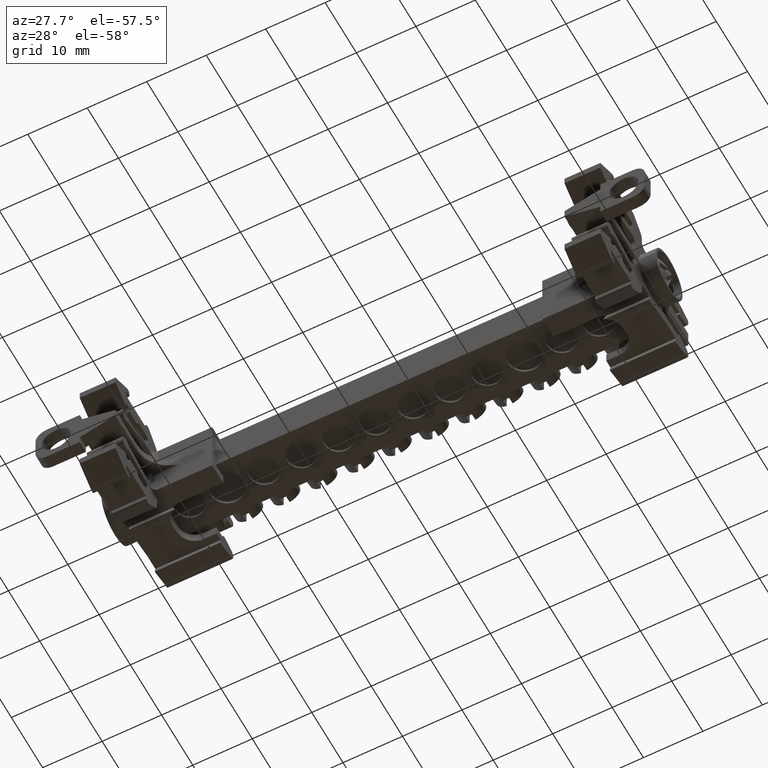
[diagram: clean part render]
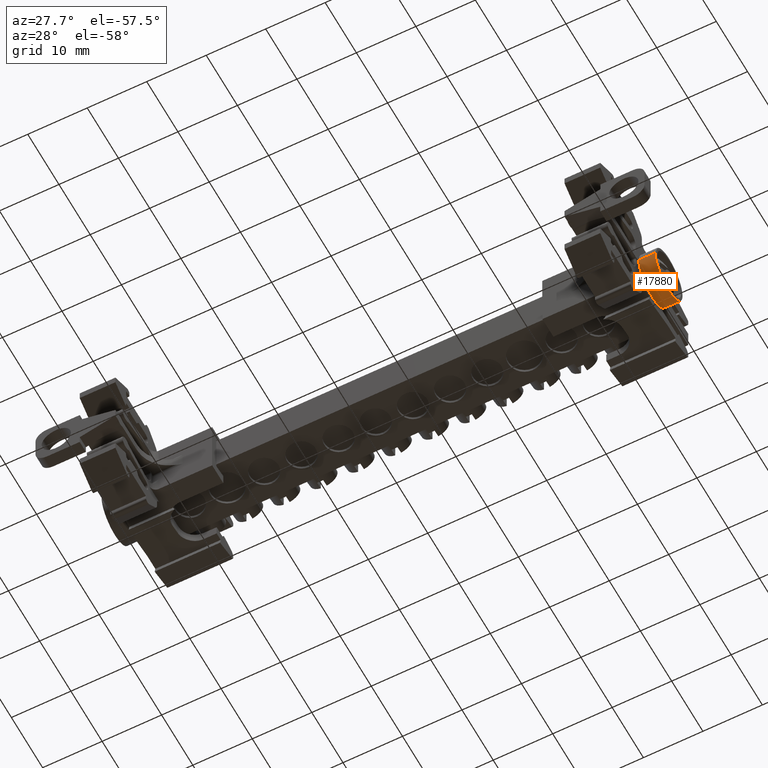
[diagram: same view with one face highlighted and labeled with its STEP entity id]
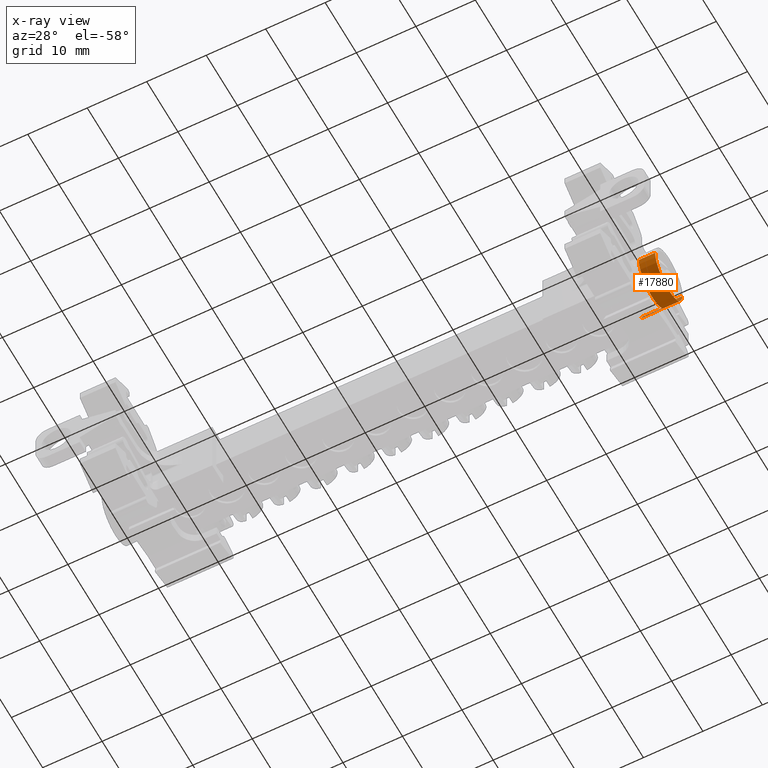
[diagram: x-ray of the same camera — body ghosted, the highlighted face saturated]
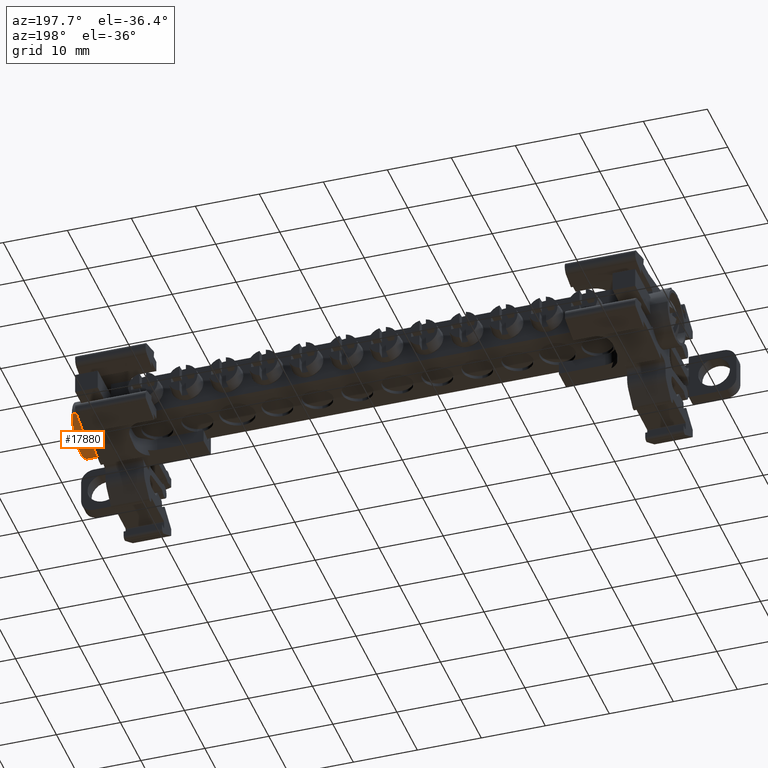
[diagram: same view with one face highlighted and labeled with its STEP entity id]
A machine part, auxiliary view. The second image highlights one B-rep face of the part: STEP entity #17880.
The next image is the same camera in x-ray: the body ghosted, the highlighted face saturated — about 0% of this face is hidden behind the body in this view.
A second angle (auxiliary view) of the same face is appended — the face is thin or edge-on in the first view.
In plain terms, the highlighted cylindrical surface (edge-blend (fillet) strip) has radius 4.325 mm, axis along (-1, -0, -0).
Its self-contained STEP definition (entity closure, byte-faithful):
#86 = EDGE_CURVE ( 'NONE', #6976, #6936, #536, .T. ) ;
#536 = CIRCLE ( 'NONE', #542, 4.325000000000079200 ) ;
#542 = AXIS2_PLACEMENT_3D ( 'NONE', #21984, #21960, #21961 ) ;
#916 = VECTOR ( 'NONE', #22219, 1000.000000000000000 ) ;
#991 = VECTOR ( 'NONE', #8019, 1000.000000000000000 ) ;
#3238 = VERTEX_POINT ( 'NONE', #5649 ) ;
#3251 = VERTEX_POINT ( 'NONE', #5648 ) ;
#5648 = CARTESIAN_POINT ( 'NONE',  ( -53.82164581438651400, -100.3841813248499800, 215.9713441700650900 ) ) ;
#5649 = CARTESIAN_POINT ( 'NONE',  ( -53.82164581438652100, -91.73418132484982800, 215.9713441700650900 ) ) ;
#6309 = VERTEX_POINT ( 'NONE', #25501 ) ;
#6381 = VERTEX_POINT ( 'NONE', #25566 ) ;
#6492 = VERTEX_POINT ( 'NONE', #22928 ) ;
#6540 = VERTEX_POINT ( 'NONE', #22424 ) ;
#6695 = ORIENTED_EDGE ( 'NONE', *, *, #13070, .F. ) ;
#6697 = ORIENTED_EDGE ( 'NONE', *, *, #13046, .F. ) ;
#6734 = ORIENTED_EDGE ( 'NONE', *, *, #12807, .T. ) ;
#6744 = ORIENTED_EDGE ( 'NONE', *, *, #9410, .T. ) ;
#6749 = ORIENTED_EDGE ( 'NONE', *, *, #13041, .T. ) ;
#6758 = ORIENTED_EDGE ( 'NONE', *, *, #86, .T. ) ;
#6777 = ORIENTED_EDGE ( 'NONE', *, *, #13072, .T. ) ;
#6794 = ORIENTED_EDGE ( 'NONE', *, *, #9326, .F. ) ;
#6936 = VERTEX_POINT ( 'NONE', #22594 ) ;
#6976 = VERTEX_POINT ( 'NONE', #22636 ) ;
#8006 = LINE ( 'NONE', #8054, #991 ) ;
#8019 = DIRECTION ( 'NONE',  ( -1.000000000000000000, -1.101172293446148100E-014, -2.403906012228000300E-015 ) ) ;
#8054 = CARTESIAN_POINT ( 'NONE',  ( -53.82164581438647100, -100.3841813248499800, 215.9713441700650900 ) ) ;
#8600 = AXIS2_PLACEMENT_3D ( 'NONE', #14750, #14709, #14711 ) ;
#9326 = EDGE_CURVE ( 'NONE', #6976, #3238, #15649, .T. ) ;
#9410 = EDGE_CURVE ( 'NONE', #6936, #3251, #8006, .T. ) ;
#12807 = EDGE_CURVE ( 'NONE', #6381, #6309, #14015, .T. ) ;
#13041 = EDGE_CURVE ( 'NONE', #6309, #6540, #26114, .T. ) ;
#13046 = EDGE_CURVE ( 'NONE', #3238, #6492, #26096, .T. ) ;
#13070 = EDGE_CURVE ( 'NONE', #6381, #3251, #26102, .T. ) ;
#13072 = EDGE_CURVE ( 'NONE', #6540, #6492, #18645, .T. ) ;
#14004 = CARTESIAN_POINT ( 'NONE',  ( -53.82164581438654200, -92.94444789659343100, 212.9706674679023300 ) ) ;
#14015 = LINE ( 'NONE', #14004, #25820 ) ;
#14016 = DIRECTION ( 'NONE',  ( -1.000000000000000000, -1.101172293446148100E-014, -2.403906012228000300E-015 ) ) ;
#14708 = CYLINDRICAL_SURFACE ( 'NONE', #8600, 4.325000000000079200 ) ;
#14709 = DIRECTION ( 'NONE',  ( -1.000000000000000000, -1.101172293446148100E-014, -2.403906012228000300E-015 ) ) ;
#14711 = DIRECTION ( 'NONE',  ( 1.123057972886698400E-014, -1.000000000000000000, 0.0000000000000000000 ) ) ;
#14735 = FACE_OUTER_BOUND ( 'NONE', #17360, .T. ) ;
#14750 = CARTESIAN_POINT ( 'NONE',  ( -53.82164581438652100, -96.05918132484990200, 215.9713441700650900 ) ) ;
#15649 = LINE ( 'NONE', #15651, #916 ) ;
#15651 = CARTESIAN_POINT ( 'NONE',  ( -53.82164581438656400, -91.73418132484982800, 215.9713441700650900 ) ) ;
#17360 = EDGE_LOOP ( 'NONE', ( #6794, #6758, #6744, #6695, #6734, #6749, #6777, #6697 ) ) ;
#17880 = ADVANCED_FACE ( 'NONE', ( #14735 ), #14708, .T. ) ;
#18549 = DIRECTION ( 'NONE',  ( 1.000000000000000000, 1.101172293446148100E-014, 2.403906012228000300E-015 ) ) ;
#18559 = DIRECTION ( 'NONE',  ( 1.123057972886698400E-014, -1.000000000000000000, 6.417474130781133800E-015 ) ) ;
#18570 = CARTESIAN_POINT ( 'NONE',  ( -57.35164581438640100, -96.05918132484994500, 215.9713441700650900 ) ) ;
#18578 = DIRECTION ( 'NONE',  ( -1.000000000000000000, -1.101172293446148100E-014, -2.403906012228000300E-015 ) ) ;
#18607 = DIRECTION ( 'NONE',  ( 1.123057972886698400E-014, -1.000000000000000000, 0.0000000000000000000 ) ) ;
#18616 = CARTESIAN_POINT ( 'NONE',  ( -53.82164581438647100, -96.05918132484990200, 215.9713441700650900 ) ) ;
#18645 = LINE ( 'NONE', #18676, #26065 ) ;
#18652 = DIRECTION ( 'NONE',  ( -1.000000000000000000, -1.101172293446148100E-014, -2.403906012228000300E-015 ) ) ;
#18653 = CARTESIAN_POINT ( 'NONE',  ( -53.82164581438655700, -96.05918132484990200, 215.9713441700650900 ) ) ;
#18654 = DIRECTION ( 'NONE',  ( 1.123057972886698400E-014, -1.000000000000000000, 0.0000000000000000000 ) ) ;
#18676 = CARTESIAN_POINT ( 'NONE',  ( -16.39264406477285300, -92.02420529963119100, 214.4142335523136200 ) ) ;
#18688 = DIRECTION ( 'NONE',  ( 1.000000000000000000, 1.100161628464490100E-014, 2.339979767941180200E-015 ) ) ;
#21960 = DIRECTION ( 'NONE',  ( -1.000000000000000000, -1.101172293446148100E-014, -2.403906012228000300E-015 ) ) ;
#21961 = DIRECTION ( 'NONE',  ( 1.123057972886698400E-014, -1.000000000000000000, 0.0000000000000000000 ) ) ;
#21984 = CARTESIAN_POINT ( 'NONE',  ( -51.07164581438649300, -96.05918132484987400, 215.9713441700650900 ) ) ;
#22219 = DIRECTION ( 'NONE',  ( -1.000000000000000000, -1.101172293446148100E-014, -2.403906012228000300E-015 ) ) ;
#22424 = CARTESIAN_POINT ( 'NONE',  ( -57.35164581438645800, -92.02420529963167400, 214.4142335523135300 ) ) ;
#22594 = CARTESIAN_POINT ( 'NONE',  ( -51.07164581438644300, -100.3841813248499600, 215.9713441700650900 ) ) ;
#22636 = CARTESIAN_POINT ( 'NONE',  ( -51.07164581438654200, -91.73418132484980000, 215.9713441700650900 ) ) ;
#22928 = CARTESIAN_POINT ( 'NONE',  ( -53.82164581438650700, -92.02420529963161800, 214.4142335523135300 ) ) ;
#25501 = CARTESIAN_POINT ( 'NONE',  ( -57.35164581438642300, -92.94444786499015300, 212.9706675007069000 ) ) ;
#25566 = CARTESIAN_POINT ( 'NONE',  ( -53.82164581438659200, -92.94444806298291400, 212.9706672951883500 ) ) ;
#25820 = VECTOR ( 'NONE', #14016, 1000.000000000000000 ) ;
#26065 = VECTOR ( 'NONE', #18688, 1000.000000000000000 ) ;
#26066 = AXIS2_PLACEMENT_3D ( 'NONE', #18570, #18549, #18559 ) ;
#26075 = AXIS2_PLACEMENT_3D ( 'NONE', #18616, #18578, #18607 ) ;
#26096 = CIRCLE ( 'NONE', #26075, 4.325000000000079200 ) ;
#26102 = CIRCLE ( 'NONE', #26120, 4.325000000000079200 ) ;
#26114 = CIRCLE ( 'NONE', #26066, 4.325000000000079200 ) ;
#26120 = AXIS2_PLACEMENT_3D ( 'NONE', #18653, #18652, #18654 ) ;